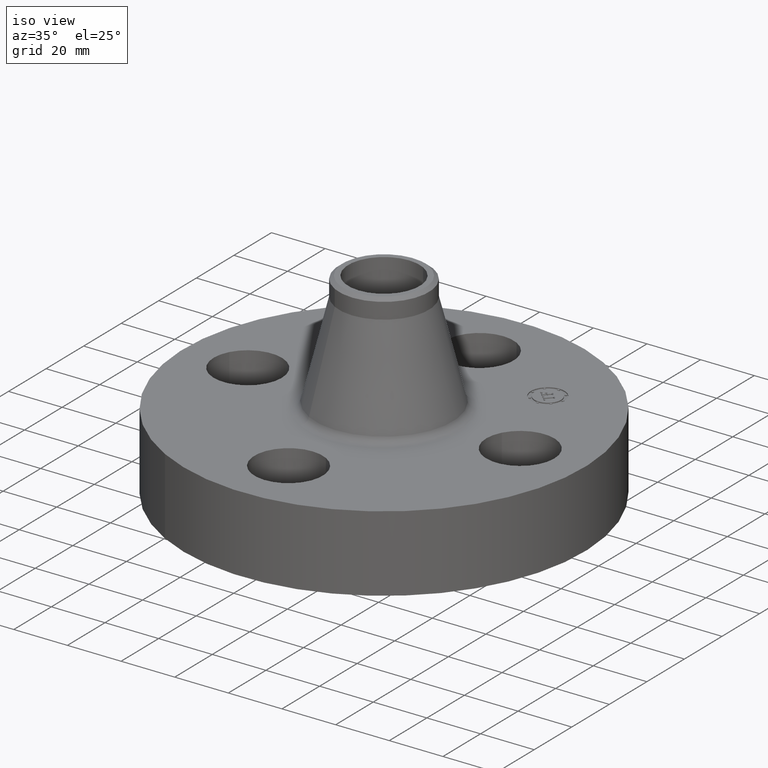
[diagram: clean part render]
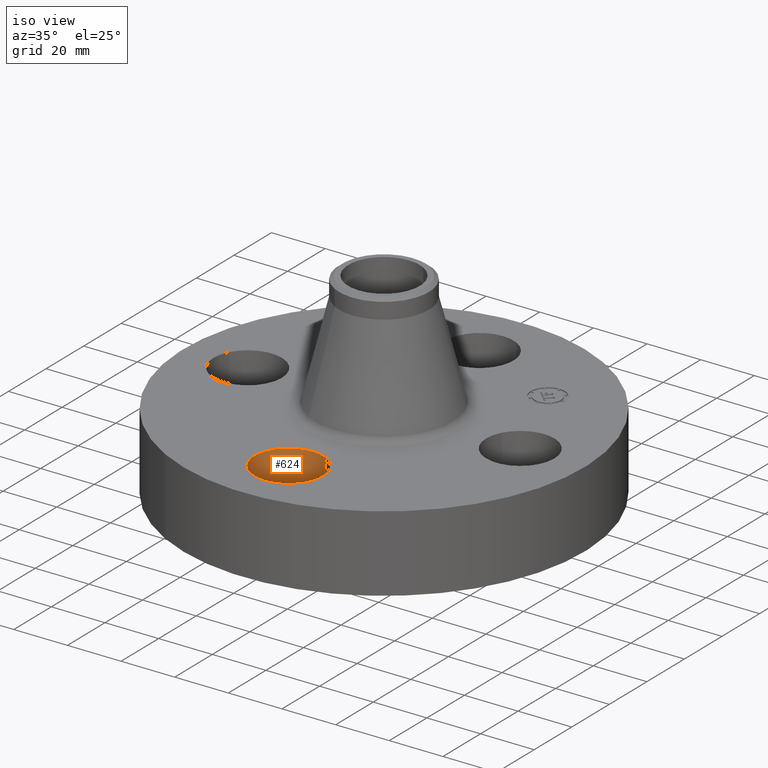
[diagram: same view with one face highlighted and labeled with its STEP entity id]
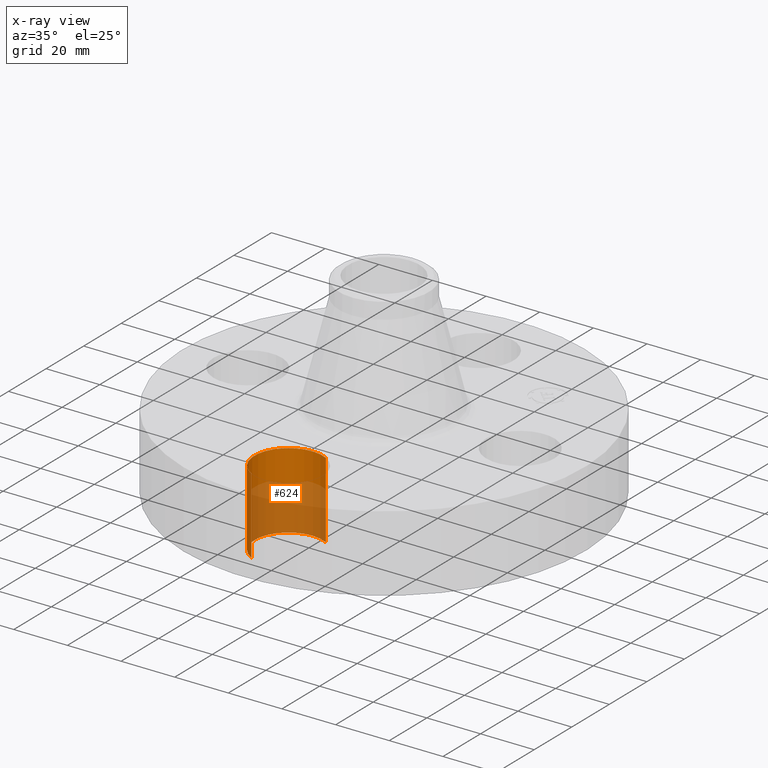
[diagram: x-ray of the same camera — body ghosted, the highlighted face saturated]
A machine part, iso view. The second image highlights one B-rep face of the part: STEP entity #624.
The next image is the same camera in x-ray: the body ghosted, the highlighted face saturated — about 58% of this face is hidden behind the body in this view.
In plain terms, the highlighted cylindrical surface (partial cylindrical patch) has radius 12.7 mm, axis along (0, -0, -1).
Its self-contained STEP definition (entity closure, byte-faithful):
#452=AXIS2_PLACEMENT_3D('Circle Axis2P3D',#450,#451,$) ;
#585=AXIS2_PLACEMENT_3D('Cylinder Axis2P3D',#582,#583,#584) ;
#615=AXIS2_PLACEMENT_3D('Circle Axis2P3D',#613,#614,$) ;
#445=CARTESIAN_POINT('Vertex',(0.239712769303,-1.56120871906,0.)) ;
#447=CARTESIAN_POINT('Vertex',(-0.239712769303,-2.43879128095,0.)) ;
#450=CARTESIAN_POINT('Axis2P3D Location',(2.79741234551E-016,-2.00000000001,0.)) ;
#582=CARTESIAN_POINT('Axis2P3D Location',(1.22464679915E-016,-2.00000000001,1.11606299213)) ;
#587=CARTESIAN_POINT('Line Origine',(0.239712769303,-1.56120871906,0.560000000002)) ;
#591=CARTESIAN_POINT('Vertex',(0.239712769303,-1.56120871906,1.12)) ;
#594=CARTESIAN_POINT('Line Origine',(-0.239712769303,-2.43879128095,0.560000000002)) ;
#598=CARTESIAN_POINT('Vertex',(-0.239712769303,-2.43879128095,1.12)) ;
#613=CARTESIAN_POINT('Axis2P3D Location',(1.22464679915E-016,-2.00000000001,1.12)) ;
#451=DIRECTION('Axis2P3D Direction',(0.,0.,-0.0393700787402)) ;
#583=DIRECTION('Axis2P3D Direction',(0.,-0.,-0.0393700787402)) ;
#584=DIRECTION('Axis2P3D XDirection',(-0.0188750212049,-0.0345504945626,0.)) ;
#588=DIRECTION('Vector Direction',(0.,0.,-0.0393700787402)) ;
#595=DIRECTION('Vector Direction',(0.,0.,-0.0393700787402)) ;
#614=DIRECTION('Axis2P3D Direction',(0.,-0.,-0.0393700787402)) ;
#589=VECTOR('Line Direction',#588,0.0393700787402) ;
#596=VECTOR('Line Direction',#595,0.0393700787402) ;
#619=ORIENTED_EDGE('',*,*,#600,.F.) ;
#620=ORIENTED_EDGE('',*,*,#454,.T.) ;
#621=ORIENTED_EDGE('',*,*,#593,.T.) ;
#622=ORIENTED_EDGE('',*,*,#617,.F.) ;
#624=ADVANCED_FACE('PartBody',(#623),#586,.F.) ;
#453=CIRCLE('generated circle',#452,0.500000000002) ;
#616=CIRCLE('generated circle',#615,0.500000000002) ;
#586=CYLINDRICAL_SURFACE('generated cylinder',#585,0.500000000002) ;
#454=EDGE_CURVE('',#448,#446,#453,.T.) ;
#593=EDGE_CURVE('',#446,#592,#590,.F.) ;
#600=EDGE_CURVE('',#448,#599,#597,.F.) ;
#617=EDGE_CURVE('',#599,#592,#616,.T.) ;
#618=EDGE_LOOP('',(#619,#620,#621,#622)) ;
#623=FACE_OUTER_BOUND('',#618,.T.) ;
#590=LINE('Line',#587,#589) ;
#597=LINE('Line',#594,#596) ;
#446=VERTEX_POINT('',#445) ;
#448=VERTEX_POINT('',#447) ;
#592=VERTEX_POINT('',#591) ;
#599=VERTEX_POINT('',#598) ;